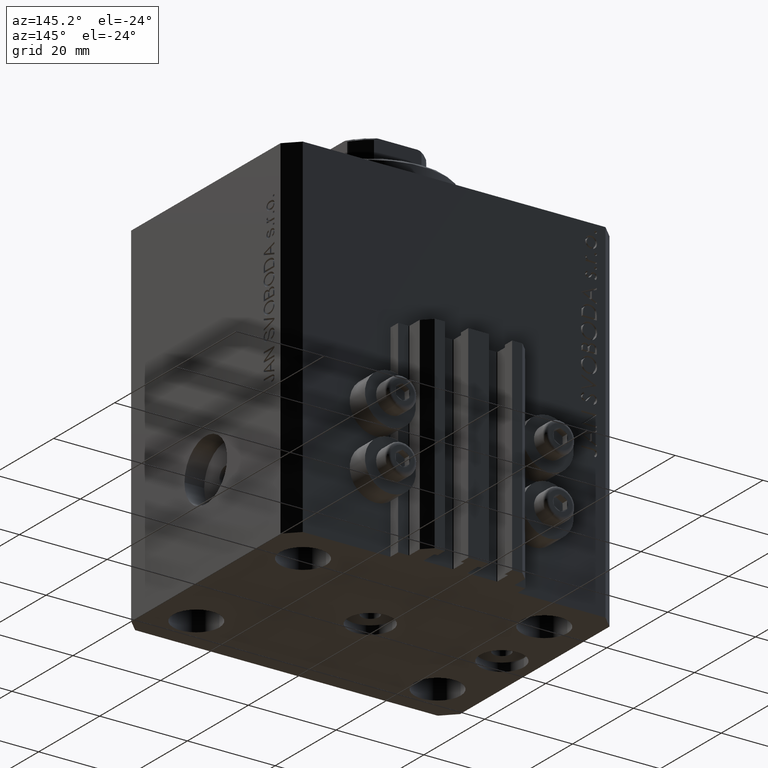
[diagram: clean part render]
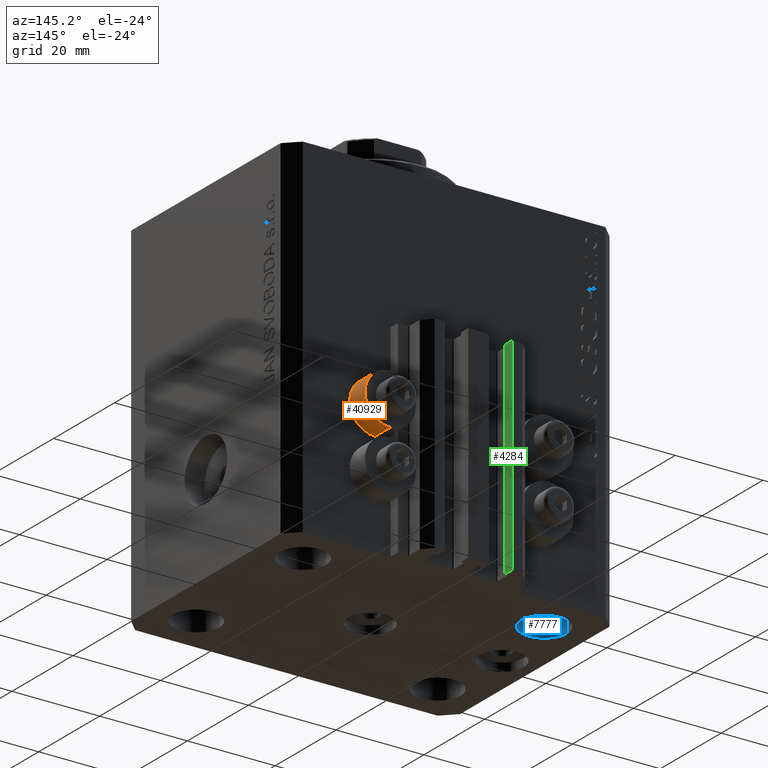
[diagram: same view with three faces highlighted in distinct colors, each labeled with its STEP entity id]
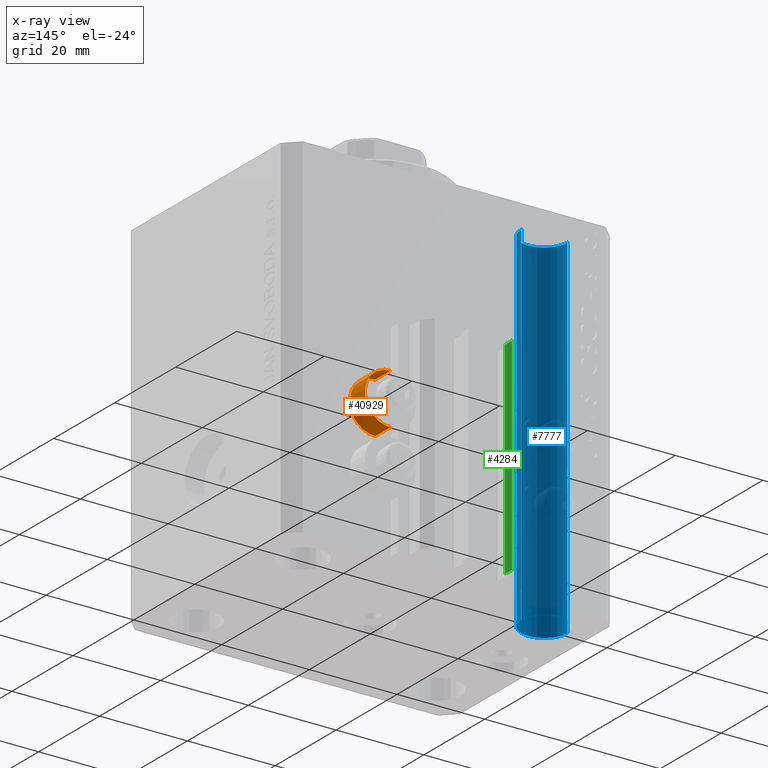
[diagram: x-ray of the same camera — body ghosted, the three highlighted faces saturated]
A machine part, auxiliary view with three faces highlighted in distinct colors.
The next image is the same camera in x-ray (body ghosted, the three faces saturated) — at least one of them is partly hidden behind the body in this view.
Their STEP definitions:

[orange] entity #40929 — the highlighted cylindrical surface (edge-blend (fillet) strip) has radius 5.8 mm, axis along (0, 1, 0).
#790 = VERTEX_POINT ( 'NONE', #14298 ) ;
#5809 = ORIENTED_EDGE ( 'NONE', *, *, #21820, .T. ) ;
#6254 = EDGE_CURVE ( 'NONE', #12934, #790, #32729, .T. ) ;
#7659 = DIRECTION ( 'NONE',  ( 0.000000000000000000, 0.000000000000000000, 1.000000000000000000 ) ) ;
#7921 = DIRECTION ( 'NONE',  ( 0.000000000000000000, 1.000000000000000000, 0.000000000000000000 ) ) ;
#9996 = EDGE_CURVE ( 'NONE', #21782, #790, #33372, .T. ) ;
#10708 = CARTESIAN_POINT ( 'NONE',  ( 18.00000000000000355, 32.49999999996100541, -50.39999999999999858 ) ) ;
#11514 = VECTOR ( 'NONE', #7921, 1000.000000000000000 ) ;
#11938 = CARTESIAN_POINT ( 'NONE',  ( 18.00000000000000355, 32.49999999996100541, -56.20000000000000284 ) ) ;
#12934 = VERTEX_POINT ( 'NONE', #11938 ) ;
#12978 = DIRECTION ( 'NONE',  ( -0.000000000000000000, -1.000000000000000000, -0.000000000000000000 ) ) ;
#13909 = AXIS2_PLACEMENT_3D ( 'NONE', #10708, #32538, #24877 ) ;
#14073 = CYLINDRICAL_SURFACE ( 'NONE', #13909, 5.799999999999999822 ) ;
#14194 = CIRCLE ( 'NONE', #44851, 5.799999999999999822 ) ;
#14298 = CARTESIAN_POINT ( 'NONE',  ( 18.00000000000000355, 32.49999999996100541, -44.60000000000000142 ) ) ;
#14935 = VERTEX_POINT ( 'NONE', #19266 ) ;
#16065 = CARTESIAN_POINT ( 'NONE',  ( 18.00000000000000355, 32.49999999996100541, -50.39999999999999858 ) ) ;
#18385 = FACE_OUTER_BOUND ( 'NONE', #21328, .T. ) ;
#18494 = CARTESIAN_POINT ( 'NONE',  ( 18.00000000000000355, 32.49999999996100541, -56.20000000000000284 ) ) ;
#18733 = DIRECTION ( 'NONE',  ( 0.000000000000000000, 1.000000000000000000, 0.000000000000000000 ) ) ;
#19266 = CARTESIAN_POINT ( 'NONE',  ( 18.00000000000000355, 27.50000000000000000, -56.20000000000000284 ) ) ;
#19847 = LINE ( 'NONE', #18494, #37222 ) ;
#20615 = EDGE_CURVE ( 'NONE', #14935, #21782, #14194, .T. ) ;
#21328 = EDGE_LOOP ( 'NONE', ( #31671, #5809, #21895, #27226 ) ) ;
#21782 = VERTEX_POINT ( 'NONE', #43204 ) ;
#21820 = EDGE_CURVE ( 'NONE', #14935, #12934, #19847, .T. ) ;
#21895 = ORIENTED_EDGE ( 'NONE', *, *, #6254, .T. ) ;
#22432 = CARTESIAN_POINT ( 'NONE',  ( 18.00000000000000355, 27.50000000000000000, -50.39999999999999858 ) ) ;
#24877 = DIRECTION ( 'NONE',  ( 0.000000000000000000, 0.000000000000000000, 1.000000000000000000 ) ) ;
#26750 = DIRECTION ( 'NONE',  ( 0.000000000000000000, 0.000000000000000000, 1.000000000000000000 ) ) ;
#27226 = ORIENTED_EDGE ( 'NONE', *, *, #9996, .F. ) ;
#31671 = ORIENTED_EDGE ( 'NONE', *, *, #20615, .F. ) ;
#32538 = DIRECTION ( 'NONE',  ( 0.000000000000000000, 1.000000000000000000, 0.000000000000000000 ) ) ;
#32729 = CIRCLE ( 'NONE', #36574, 5.799999999999999822 ) ;
#33372 = LINE ( 'NONE', #37451, #11514 ) ;
#36574 = AXIS2_PLACEMENT_3D ( 'NONE', #16065, #37668, #7659 ) ;
#37222 = VECTOR ( 'NONE', #18733, 1000.000000000000000 ) ;
#37451 = CARTESIAN_POINT ( 'NONE',  ( 18.00000000000000355, 32.49999999996100541, -44.60000000000000142 ) ) ;
#37668 = DIRECTION ( 'NONE',  ( -0.000000000000000000, -1.000000000000000000, -0.000000000000000000 ) ) ;
#40929 = ADVANCED_FACE ( 'NONE', ( #18385 ), #14073, .T. ) ;
#43204 = CARTESIAN_POINT ( 'NONE',  ( 18.00000000000000355, 27.50000000000000000, -44.60000000000000142 ) ) ;
#44851 = AXIS2_PLACEMENT_3D ( 'NONE', #22432, #12978, #26750 ) ;

[blue] entity #7777 — the highlighted cylindrical surface (edge-blend (fillet) strip) has radius 5.25 mm, axis along (0, 0, 1).
#411 = VERTEX_POINT ( 'NONE', #19199 ) ;
#1156 = CIRCLE ( 'NONE', #30311, 5.250000000000000888 ) ;
#3089 = AXIS2_PLACEMENT_3D ( 'NONE', #7554, #33248, #36854 ) ;
#4150 = DIRECTION ( 'NONE',  ( 0.000000000000000000, 0.000000000000000000, 1.000000000000000000 ) ) ;
#5136 = CIRCLE ( 'NONE', #6622, 5.250000000000000888 ) ;
#5515 = CARTESIAN_POINT ( 'NONE',  ( -27.50000000000000000, 17.49999999999999645, 0.000000000000000000 ) ) ;
#6198 = CARTESIAN_POINT ( 'NONE',  ( -32.75000000000000000, 17.49999999999999645, -94.84924240491750425 ) ) ;
#6622 = AXIS2_PLACEMENT_3D ( 'NONE', #26985, #12110, #37776 ) ;
#7554 = CARTESIAN_POINT ( 'NONE',  ( -27.50000000000000000, 17.49999999999999645, -94.84924240491750425 ) ) ;
#7777 = ADVANCED_FACE ( 'NONE', ( #44993 ), #11171, .F. ) ;
#11171 = CYLINDRICAL_SURFACE ( 'NONE', #3089, 5.250000000000000888 ) ;
#12110 = DIRECTION ( 'NONE',  ( -0.000000000000000000, -0.000000000000000000, -1.000000000000000000 ) ) ;
#12418 = LINE ( 'NONE', #15554, #27942 ) ;
#13659 = LINE ( 'NONE', #6198, #14598 ) ;
#14435 = EDGE_CURVE ( 'NONE', #36387, #411, #12418, .T. ) ;
#14598 = VECTOR ( 'NONE', #24704, 1000.000000000000000 ) ;
#15554 = CARTESIAN_POINT ( 'NONE',  ( -22.25000000000000000, 17.49999999999999645, -94.84924240491750425 ) ) ;
#17458 = EDGE_CURVE ( 'NONE', #25902, #411, #1156, .T. ) ;
#19199 = CARTESIAN_POINT ( 'NONE',  ( -22.25000000000000000, 17.49999999999999645, 0.000000000000000000 ) ) ;
#20170 = DIRECTION ( 'NONE',  ( 1.000000000000000000, 0.000000000000000000, 0.000000000000000000 ) ) ;
#23488 = ORIENTED_EDGE ( 'NONE', *, *, #17458, .T. ) ;
#24704 = DIRECTION ( 'NONE',  ( -0.000000000000000000, -0.000000000000000000, 1.000000000000000000 ) ) ;
#25902 = VERTEX_POINT ( 'NONE', #35638 ) ;
#26053 = EDGE_CURVE ( 'NONE', #36387, #37802, #5136, .T. ) ;
#26985 = CARTESIAN_POINT ( 'NONE',  ( -27.50000000000000000, 17.49999999999999645, -80.00000000000000000 ) ) ;
#27942 = VECTOR ( 'NONE', #37615, 1000.000000000000000 ) ;
#30311 = AXIS2_PLACEMENT_3D ( 'NONE', #5515, #4150, #20170 ) ;
#32138 = ORIENTED_EDGE ( 'NONE', *, *, #38693, .T. ) ;
#33248 = DIRECTION ( 'NONE',  ( -0.000000000000000000, -0.000000000000000000, 1.000000000000000000 ) ) ;
#35436 = ORIENTED_EDGE ( 'NONE', *, *, #26053, .T. ) ;
#35638 = CARTESIAN_POINT ( 'NONE',  ( -32.75000000000000000, 17.49999999999999645, 0.000000000000000000 ) ) ;
#36387 = VERTEX_POINT ( 'NONE', #42416 ) ;
#36854 = DIRECTION ( 'NONE',  ( 1.000000000000000000, 0.000000000000000000, 0.000000000000000000 ) ) ;
#37615 = DIRECTION ( 'NONE',  ( -0.000000000000000000, -0.000000000000000000, 1.000000000000000000 ) ) ;
#37776 = DIRECTION ( 'NONE',  ( 1.000000000000000000, 0.000000000000000000, 0.000000000000000000 ) ) ;
#37802 = VERTEX_POINT ( 'NONE', #45856 ) ;
#38693 = EDGE_CURVE ( 'NONE', #37802, #25902, #13659, .T. ) ;
#39236 = ORIENTED_EDGE ( 'NONE', *, *, #14435, .F. ) ;
#41282 = EDGE_LOOP ( 'NONE', ( #35436, #32138, #23488, #39236 ) ) ;
#42416 = CARTESIAN_POINT ( 'NONE',  ( -22.25000000000000000, 17.49999999999999645, -80.00000000000000000 ) ) ;
#44993 = FACE_OUTER_BOUND ( 'NONE', #41282, .T. ) ;
#45856 = CARTESIAN_POINT ( 'NONE',  ( -32.75000000000000000, 17.49999999999999645, -80.00000000000000000 ) ) ;

[green] entity #4284 — the highlighted planar face has unit normal (1, 0, 0).
#80 = EDGE_CURVE ( 'NONE', #8316, #28167, #41555, .T. ) ;
#3086 = EDGE_CURVE ( 'NONE', #16699, #46099, #12445, .T. ) ;
#4284 = ADVANCED_FACE ( 'NONE', ( #12348 ), #26989, .T. ) ;
#4338 = VECTOR ( 'NONE', #43476, 1000.000000000000000 ) ;
#5444 = CARTESIAN_POINT ( 'NONE',  ( -7.650000000000000355, 33.09999999999999432, -33.00000000000000000 ) ) ;
#8316 = VERTEX_POINT ( 'NONE', #29297 ) ;
#8679 = CARTESIAN_POINT ( 'NONE',  ( -7.650000000000000355, 33.09999999999999432, -80.00000000000000000 ) ) ;
#9909 = CARTESIAN_POINT ( 'NONE',  ( -7.650000000000000355, 33.09999999999999432, -80.00000000000000000 ) ) ;
#10127 = CARTESIAN_POINT ( 'NONE',  ( -7.650000000000000355, 33.09999999999999432, -33.00000000000000000 ) ) ;
#12348 = FACE_OUTER_BOUND ( 'NONE', #35744, .T. ) ;
#12445 = LINE ( 'NONE', #5444, #13535 ) ;
#12782 = AXIS2_PLACEMENT_3D ( 'NONE', #9909, #42778, #31741 ) ;
#12904 = DIRECTION ( 'NONE',  ( 0.000000000000000000, 1.000000000000000000, 0.000000000000000000 ) ) ;
#13535 = VECTOR ( 'NONE', #12904, 1000.000000000000000 ) ;
#13782 = CARTESIAN_POINT ( 'NONE',  ( -7.650000000000000355, 33.09999999999999432, -80.00000000000000000 ) ) ;
#16699 = VERTEX_POINT ( 'NONE', #10127 ) ;
#18164 = ORIENTED_EDGE ( 'NONE', *, *, #3086, .F. ) ;
#22464 = EDGE_CURVE ( 'NONE', #8316, #16699, #25769, .T. ) ;
#23330 = DIRECTION ( 'NONE',  ( 0.000000000000000000, 1.000000000000000000, 0.000000000000000000 ) ) ;
#24570 = ORIENTED_EDGE ( 'NONE', *, *, #26236, .T. ) ;
#25769 = LINE ( 'NONE', #13782, #38737 ) ;
#26236 = EDGE_CURVE ( 'NONE', #28167, #46099, #39877, .T. ) ;
#26989 = PLANE ( 'NONE',  #12782 ) ;
#28167 = VERTEX_POINT ( 'NONE', #31198 ) ;
#29297 = CARTESIAN_POINT ( 'NONE',  ( -7.650000000000000355, 33.09999999999999432, -80.00000000000000000 ) ) ;
#29726 = CARTESIAN_POINT ( 'NONE',  ( -7.650000000000000355, 35.50000000000000000, -33.00000000000000000 ) ) ;
#31198 = CARTESIAN_POINT ( 'NONE',  ( -7.650000000000000355, 35.50000000000000000, -80.00000000000000000 ) ) ;
#31741 = DIRECTION ( 'NONE',  ( 0.000000000000000000, 0.000000000000000000, -1.000000000000000000 ) ) ;
#35744 = EDGE_LOOP ( 'NONE', ( #18164, #38639, #47053, #24570 ) ) ;
#38219 = VECTOR ( 'NONE', #23330, 1000.000000000000000 ) ;
#38639 = ORIENTED_EDGE ( 'NONE', *, *, #22464, .F. ) ;
#38737 = VECTOR ( 'NONE', #39676, 1000.000000000000000 ) ;
#39676 = DIRECTION ( 'NONE',  ( 0.000000000000000000, 0.000000000000000000, 1.000000000000000000 ) ) ;
#39877 = LINE ( 'NONE', #46848, #4338 ) ;
#41555 = LINE ( 'NONE', #8679, #38219 ) ;
#42778 = DIRECTION ( 'NONE',  ( 1.000000000000000000, 0.000000000000000000, 0.000000000000000000 ) ) ;
#43476 = DIRECTION ( 'NONE',  ( 0.000000000000000000, 0.000000000000000000, 1.000000000000000000 ) ) ;
#46099 = VERTEX_POINT ( 'NONE', #29726 ) ;
#46848 = CARTESIAN_POINT ( 'NONE',  ( -7.650000000000000355, 35.50000000000000000, -80.00000000000000000 ) ) ;
#47053 = ORIENTED_EDGE ( 'NONE', *, *, #80, .T. ) ;